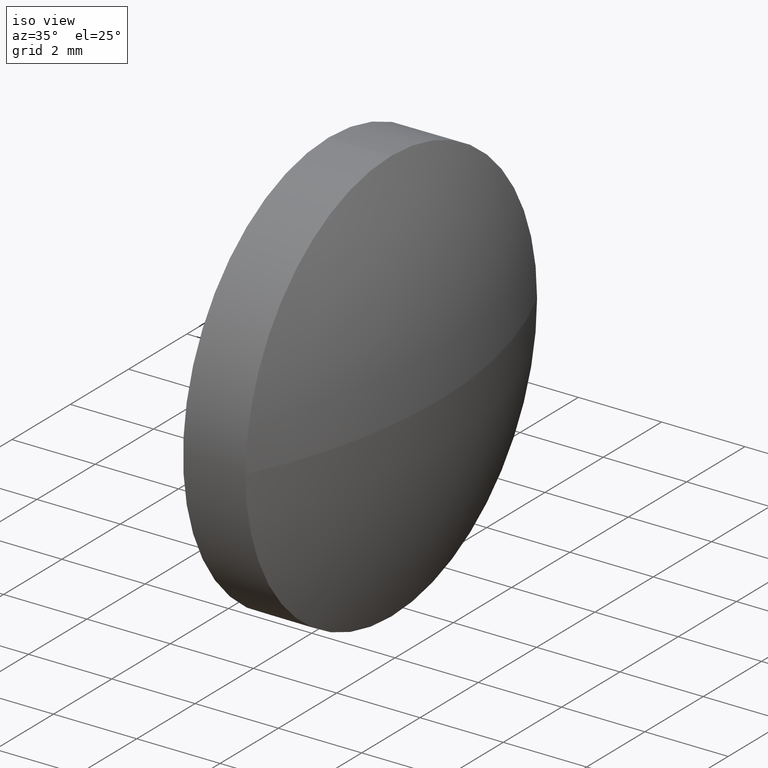
[diagram: clean part render]
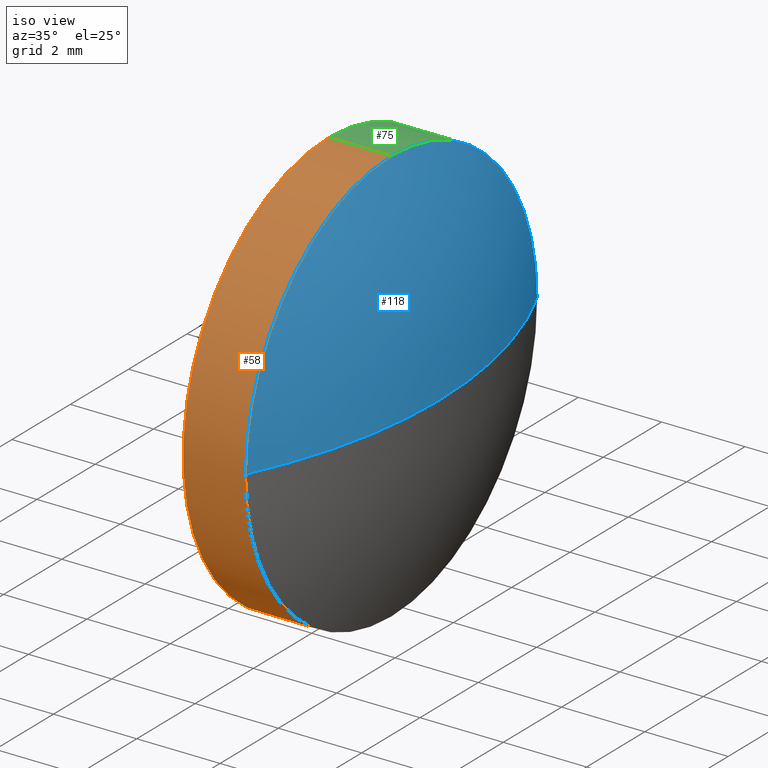
[diagram: same view with three faces highlighted in distinct colors, each labeled with its STEP entity id]
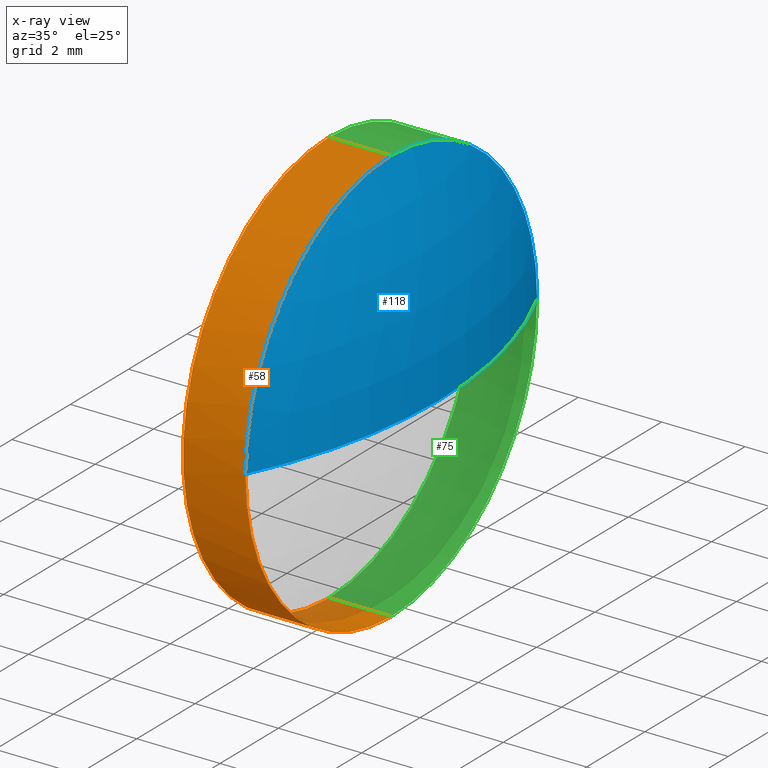
[diagram: x-ray of the same camera — body ghosted, the three highlighted faces saturated]
A machine part, iso view with three faces highlighted in distinct colors.
The next image is the same camera in x-ray (body ghosted, the three faces saturated) — at least one of them is partly hidden behind the body in this view.
Their STEP definitions:

[orange] entity #58 — the highlighted cylindrical surface (partial cylindrical patch) has radius 5 mm, axis along (-1, -0, -0).
#4 = VERTEX_POINT ( 'NONE', #175 ) ;
#5 = DIRECTION ( 'NONE',  ( -1.000000000000000000, -0.0000000000000000000, -0.0000000000000000000 ) ) ;
#19 = DIRECTION ( 'NONE',  ( 0.0000000000000000000, 0.0000000000000000000, 1.000000000000000000 ) ) ;
#22 = CARTESIAN_POINT ( 'NONE',  ( 486.4612023547895200, 77.15318376785940300, 5.000000000000004400 ) ) ;
#30 = ORIENTED_EDGE ( 'NONE', *, *, #110, .F. ) ;
#32 = AXIS2_PLACEMENT_3D ( 'NONE', #48, #163, #158 ) ;
#33 = FACE_OUTER_BOUND ( 'NONE', #108, .T. ) ;
#36 = CARTESIAN_POINT ( 'NONE',  ( 487.6034320472339200, 77.15318376785940300, 0.0000000000000000000 ) ) ;
#38 = CARTESIAN_POINT ( 'NONE',  ( 489.1034320472339200, 77.15318376785940300, 0.0000000000000000000 ) ) ;
#42 = CIRCLE ( 'NONE', #120, 5.000000000000004400 ) ;
#43 = EDGE_CURVE ( 'NONE', #156, #86, #42, .T. ) ;
#48 = CARTESIAN_POINT ( 'NONE',  ( 486.4612023547895200, 77.15318376785940300, 0.0000000000000000000 ) ) ;
#49 = LINE ( 'NONE', #22, #105 ) ;
#58 = ADVANCED_FACE ( 'NONE', ( #33 ), #90, .T. ) ;
#65 = VECTOR ( 'NONE', #115, 1000.000000000000000 ) ;
#70 = CARTESIAN_POINT ( 'NONE',  ( 489.1034320472339200, 77.15318376785940300, -5.000000000000004400 ) ) ;
#72 = CARTESIAN_POINT ( 'NONE',  ( 486.4612023547895200, 77.15318376785940300, -5.000000000000004400 ) ) ;
#73 = DIRECTION ( 'NONE',  ( -1.000000000000000000, -0.0000000000000000000, -0.0000000000000000000 ) ) ;
#76 = ORIENTED_EDGE ( 'NONE', *, *, #94, .T. ) ;
#83 = ORIENTED_EDGE ( 'NONE', *, *, #146, .F. ) ;
#86 = VERTEX_POINT ( 'NONE', #96 ) ;
#90 = CYLINDRICAL_SURFACE ( 'NONE', #32, 5.000000000000004400 ) ;
#94 = EDGE_CURVE ( 'NONE', #154, #156, #134, .T. ) ;
#96 = CARTESIAN_POINT ( 'NONE',  ( 489.1034320472339200, 77.15318376785940300, 5.000000000000004400 ) ) ;
#97 = CARTESIAN_POINT ( 'NONE',  ( 489.1034320472339200, 77.15318376785940300, 0.0000000000000000000 ) ) ;
#99 = LINE ( 'NONE', #72, #65 ) ;
#102 = DIRECTION ( 'NONE',  ( 0.0000000000000000000, 0.0000000000000000000, 1.000000000000000000 ) ) ;
#105 = VECTOR ( 'NONE', #73, 1000.000000000000000 ) ;
#108 = EDGE_LOOP ( 'NONE', ( #83, #76, #133, #155, #30 ) ) ;
#110 = EDGE_CURVE ( 'NONE', #148, #4, #138, .T. ) ;
#115 = DIRECTION ( 'NONE',  ( -1.000000000000000000, -0.0000000000000000000, -0.0000000000000000000 ) ) ;
#120 = AXIS2_PLACEMENT_3D ( 'NONE', #97, #5, #19 ) ;
#126 = CARTESIAN_POINT ( 'NONE',  ( 487.6034320472339200, 77.15318376785940300, -5.000000000000004400 ) ) ;
#128 = DIRECTION ( 'NONE',  ( -1.000000000000000000, -0.0000000000000000000, -0.0000000000000000000 ) ) ;
#133 = ORIENTED_EDGE ( 'NONE', *, *, #43, .T. ) ;
#134 = CIRCLE ( 'NONE', #147, 5.000000000000004400 ) ;
#138 = CIRCLE ( 'NONE', #181, 5.000000000000004400 ) ;
#146 = EDGE_CURVE ( 'NONE', #154, #148, #99, .T. ) ;
#147 = AXIS2_PLACEMENT_3D ( 'NONE', #38, #128, #182 ) ;
#148 = VERTEX_POINT ( 'NONE', #126 ) ;
#154 = VERTEX_POINT ( 'NONE', #70 ) ;
#155 = ORIENTED_EDGE ( 'NONE', *, *, #159, .T. ) ;
#156 = VERTEX_POINT ( 'NONE', #180 ) ;
#158 = DIRECTION ( 'NONE',  ( 0.0000000000000000000, 0.0000000000000000000, 1.000000000000000000 ) ) ;
#159 = EDGE_CURVE ( 'NONE', #86, #4, #49, .T. ) ;
#163 = DIRECTION ( 'NONE',  ( -1.000000000000000000, -0.0000000000000000000, -0.0000000000000000000 ) ) ;
#167 = DIRECTION ( 'NONE',  ( -1.000000000000000000, -0.0000000000000000000, -0.0000000000000000000 ) ) ;
#175 = CARTESIAN_POINT ( 'NONE',  ( 487.6034320472339200, 77.15318376785940300, 5.000000000000004400 ) ) ;
#180 = CARTESIAN_POINT ( 'NONE',  ( 489.1034320472339200, 72.15318376785940300, -6.123233995736768300E-016 ) ) ;
#181 = AXIS2_PLACEMENT_3D ( 'NONE', #36, #167, #102 ) ;
#182 = DIRECTION ( 'NONE',  ( 0.0000000000000000000, 0.0000000000000000000, 1.000000000000000000 ) ) ;

[blue] entity #118 — the highlighted spherical surface has radius 11.4446 mm.
#1 = AXIS2_PLACEMENT_3D ( 'NONE', #26, #68, #40 ) ;
#5 = DIRECTION ( 'NONE',  ( -1.000000000000000000, -0.0000000000000000000, -0.0000000000000000000 ) ) ;
#8 = ORIENTED_EDGE ( 'NONE', *, *, #31, .F. ) ;
#12 = FACE_OUTER_BOUND ( 'NONE', #78, .T. ) ;
#16 = AXIS2_PLACEMENT_3D ( 'NONE', #66, #20, #162 ) ;
#19 = DIRECTION ( 'NONE',  ( 0.0000000000000000000, 0.0000000000000000000, 1.000000000000000000 ) ) ;
#20 = DIRECTION ( 'NONE',  ( -1.000000000000000000, -0.0000000000000000000, -0.0000000000000000000 ) ) ;
#23 = CIRCLE ( 'NONE', #185, 11.44456521739140000 ) ;
#26 = CARTESIAN_POINT ( 'NONE',  ( 478.8088668298425400, 77.15318376785940300, 0.0000000000000000000 ) ) ;
#31 = EDGE_CURVE ( 'NONE', #86, #67, #87, .T. ) ;
#40 = DIRECTION ( 'NONE',  ( 0.0000000000000000000, 1.000000000000000000, 1.224646799147353700E-016 ) ) ;
#42 = CIRCLE ( 'NONE', #120, 5.000000000000004400 ) ;
#43 = EDGE_CURVE ( 'NONE', #156, #86, #42, .T. ) ;
#44 = ORIENTED_EDGE ( 'NONE', *, *, #171, .F. ) ;
#46 = ORIENTED_EDGE ( 'NONE', *, *, #63, .T. ) ;
#54 = CARTESIAN_POINT ( 'NONE',  ( 478.8088668298425400, 77.15318376785940300, 0.0000000000000000000 ) ) ;
#63 = EDGE_CURVE ( 'NONE', #74, #67, #23, .T. ) ;
#66 = CARTESIAN_POINT ( 'NONE',  ( 489.1034320472339200, 77.15318376785940300, 0.0000000000000000000 ) ) ;
#67 = VERTEX_POINT ( 'NONE', #124 ) ;
#68 = DIRECTION ( 'NONE',  ( 0.0000000000000000000, 1.224646799147353200E-016, -1.000000000000000000 ) ) ;
#74 = VERTEX_POINT ( 'NONE', #112 ) ;
#77 = AXIS2_PLACEMENT_3D ( 'NONE', #54, #114, #129 ) ;
#78 = EDGE_LOOP ( 'NONE', ( #44, #46, #8, #121 ) ) ;
#86 = VERTEX_POINT ( 'NONE', #96 ) ;
#87 = CIRCLE ( 'NONE', #16, 5.000000000000004400 ) ;
#92 = DIRECTION ( 'NONE',  ( -0.0000000000000000000, 0.0000000000000000000, 1.000000000000000000 ) ) ;
#96 = CARTESIAN_POINT ( 'NONE',  ( 489.1034320472339200, 77.15318376785940300, 5.000000000000004400 ) ) ;
#97 = CARTESIAN_POINT ( 'NONE',  ( 489.1034320472339200, 77.15318376785940300, 0.0000000000000000000 ) ) ;
#112 = CARTESIAN_POINT ( 'NONE',  ( 490.2534320472339000, 77.15318376785940300, 0.0000000000000000000 ) ) ;
#114 = DIRECTION ( 'NONE',  ( -0.0000000000000000000, 0.0000000000000000000, -1.000000000000000000 ) ) ;
#118 = ADVANCED_FACE ( 'NONE', ( #12 ), #173, .T. ) ;
#120 = AXIS2_PLACEMENT_3D ( 'NONE', #97, #5, #19 ) ;
#121 = ORIENTED_EDGE ( 'NONE', *, *, #43, .F. ) ;
#124 = CARTESIAN_POINT ( 'NONE',  ( 489.1034320472339200, 82.15318376785940300, 0.0000000000000000000 ) ) ;
#129 = DIRECTION ( 'NONE',  ( 0.0000000000000000000, 1.000000000000000000, 0.0000000000000000000 ) ) ;
#132 = CIRCLE ( 'NONE', #1, 11.44456521739140000 ) ;
#136 = DIRECTION ( 'NONE',  ( 1.000000000000000000, 0.0000000000000000000, 0.0000000000000000000 ) ) ;
#156 = VERTEX_POINT ( 'NONE', #180 ) ;
#162 = DIRECTION ( 'NONE',  ( 0.0000000000000000000, 0.0000000000000000000, 1.000000000000000000 ) ) ;
#171 = EDGE_CURVE ( 'NONE', #74, #156, #132, .T. ) ;
#173 = SPHERICAL_SURFACE ( 'NONE', #77, 11.44456521739140300 ) ;
#174 = CARTESIAN_POINT ( 'NONE',  ( 478.8088668298425400, 77.15318376785940300, 0.0000000000000000000 ) ) ;
#180 = CARTESIAN_POINT ( 'NONE',  ( 489.1034320472339200, 72.15318376785940300, -6.123233995736768300E-016 ) ) ;
#185 = AXIS2_PLACEMENT_3D ( 'NONE', #174, #92, #136 ) ;

[green] entity #75 — the highlighted cylindrical surface (partial cylindrical patch) has radius 5 mm, axis along (-1, -0, -0).
#2 = CYLINDRICAL_SURFACE ( 'NONE', #10, 5.000000000000004400 ) ;
#3 = CARTESIAN_POINT ( 'NONE',  ( 486.4612023547895200, 77.15318376785940300, 0.0000000000000000000 ) ) ;
#4 = VERTEX_POINT ( 'NONE', #175 ) ;
#10 = AXIS2_PLACEMENT_3D ( 'NONE', #3, #98, #62 ) ;
#14 = AXIS2_PLACEMENT_3D ( 'NONE', #152, #150, #165 ) ;
#16 = AXIS2_PLACEMENT_3D ( 'NONE', #66, #20, #162 ) ;
#20 = DIRECTION ( 'NONE',  ( -1.000000000000000000, -0.0000000000000000000, -0.0000000000000000000 ) ) ;
#22 = CARTESIAN_POINT ( 'NONE',  ( 486.4612023547895200, 77.15318376785940300, 5.000000000000004400 ) ) ;
#27 = ORIENTED_EDGE ( 'NONE', *, *, #31, .T. ) ;
#31 = EDGE_CURVE ( 'NONE', #86, #67, #87, .T. ) ;
#41 = ORIENTED_EDGE ( 'NONE', *, *, #53, .T. ) ;
#47 = CARTESIAN_POINT ( 'NONE',  ( 489.1034320472339200, 77.15318376785940300, 0.0000000000000000000 ) ) ;
#49 = LINE ( 'NONE', #22, #105 ) ;
#53 = EDGE_CURVE ( 'NONE', #67, #154, #168, .T. ) ;
#59 = ORIENTED_EDGE ( 'NONE', *, *, #183, .F. ) ;
#62 = DIRECTION ( 'NONE',  ( 0.0000000000000000000, 0.0000000000000000000, 1.000000000000000000 ) ) ;
#65 = VECTOR ( 'NONE', #115, 1000.000000000000000 ) ;
#66 = CARTESIAN_POINT ( 'NONE',  ( 489.1034320472339200, 77.15318376785940300, 0.0000000000000000000 ) ) ;
#67 = VERTEX_POINT ( 'NONE', #124 ) ;
#70 = CARTESIAN_POINT ( 'NONE',  ( 489.1034320472339200, 77.15318376785940300, -5.000000000000004400 ) ) ;
#72 = CARTESIAN_POINT ( 'NONE',  ( 486.4612023547895200, 77.15318376785940300, -5.000000000000004400 ) ) ;
#73 = DIRECTION ( 'NONE',  ( -1.000000000000000000, -0.0000000000000000000, -0.0000000000000000000 ) ) ;
#75 = ADVANCED_FACE ( 'NONE', ( #186 ), #2, .T. ) ;
#79 = ORIENTED_EDGE ( 'NONE', *, *, #159, .F. ) ;
#81 = DIRECTION ( 'NONE',  ( 0.0000000000000000000, 0.0000000000000000000, 1.000000000000000000 ) ) ;
#86 = VERTEX_POINT ( 'NONE', #96 ) ;
#87 = CIRCLE ( 'NONE', #16, 5.000000000000004400 ) ;
#93 = CIRCLE ( 'NONE', #14, 5.000000000000004400 ) ;
#96 = CARTESIAN_POINT ( 'NONE',  ( 489.1034320472339200, 77.15318376785940300, 5.000000000000004400 ) ) ;
#98 = DIRECTION ( 'NONE',  ( -1.000000000000000000, -0.0000000000000000000, -0.0000000000000000000 ) ) ;
#99 = LINE ( 'NONE', #72, #65 ) ;
#100 = EDGE_LOOP ( 'NONE', ( #41, #170, #59, #79, #27 ) ) ;
#105 = VECTOR ( 'NONE', #73, 1000.000000000000000 ) ;
#115 = DIRECTION ( 'NONE',  ( -1.000000000000000000, -0.0000000000000000000, -0.0000000000000000000 ) ) ;
#124 = CARTESIAN_POINT ( 'NONE',  ( 489.1034320472339200, 82.15318376785940300, 0.0000000000000000000 ) ) ;
#126 = CARTESIAN_POINT ( 'NONE',  ( 487.6034320472339200, 77.15318376785940300, -5.000000000000004400 ) ) ;
#139 = DIRECTION ( 'NONE',  ( -1.000000000000000000, -0.0000000000000000000, -0.0000000000000000000 ) ) ;
#146 = EDGE_CURVE ( 'NONE', #154, #148, #99, .T. ) ;
#148 = VERTEX_POINT ( 'NONE', #126 ) ;
#150 = DIRECTION ( 'NONE',  ( -1.000000000000000000, -0.0000000000000000000, -0.0000000000000000000 ) ) ;
#152 = CARTESIAN_POINT ( 'NONE',  ( 487.6034320472339200, 77.15318376785940300, 0.0000000000000000000 ) ) ;
#154 = VERTEX_POINT ( 'NONE', #70 ) ;
#159 = EDGE_CURVE ( 'NONE', #86, #4, #49, .T. ) ;
#162 = DIRECTION ( 'NONE',  ( 0.0000000000000000000, 0.0000000000000000000, 1.000000000000000000 ) ) ;
#165 = DIRECTION ( 'NONE',  ( 0.0000000000000000000, 0.0000000000000000000, 1.000000000000000000 ) ) ;
#168 = CIRCLE ( 'NONE', #169, 5.000000000000004400 ) ;
#169 = AXIS2_PLACEMENT_3D ( 'NONE', #47, #139, #81 ) ;
#170 = ORIENTED_EDGE ( 'NONE', *, *, #146, .T. ) ;
#175 = CARTESIAN_POINT ( 'NONE',  ( 487.6034320472339200, 77.15318376785940300, 5.000000000000004400 ) ) ;
#183 = EDGE_CURVE ( 'NONE', #4, #148, #93, .T. ) ;
#186 = FACE_OUTER_BOUND ( 'NONE', #100, .T. ) ;